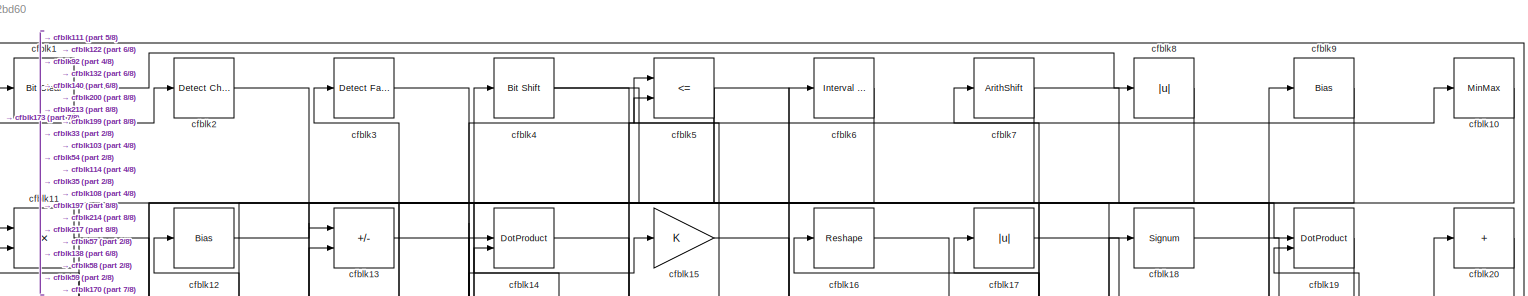
[diagram: root canvas - part 1/8, full width, top band]
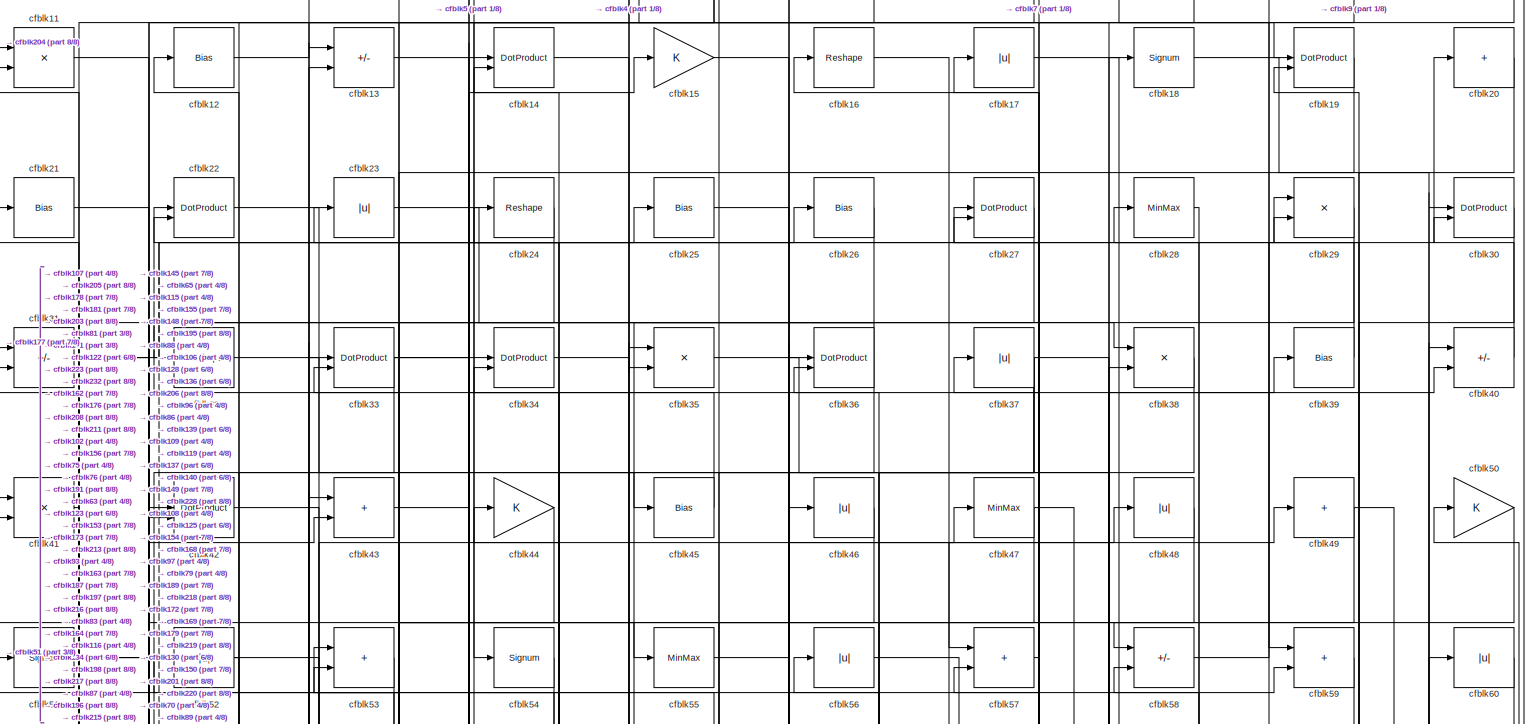
[diagram: root canvas - part 2/8, full width, top band]
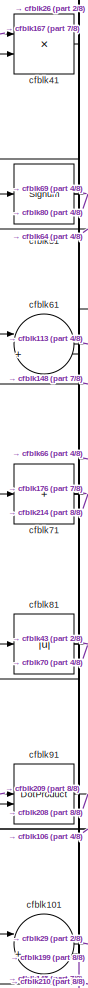
[diagram: root canvas - part 3/8, top left region]
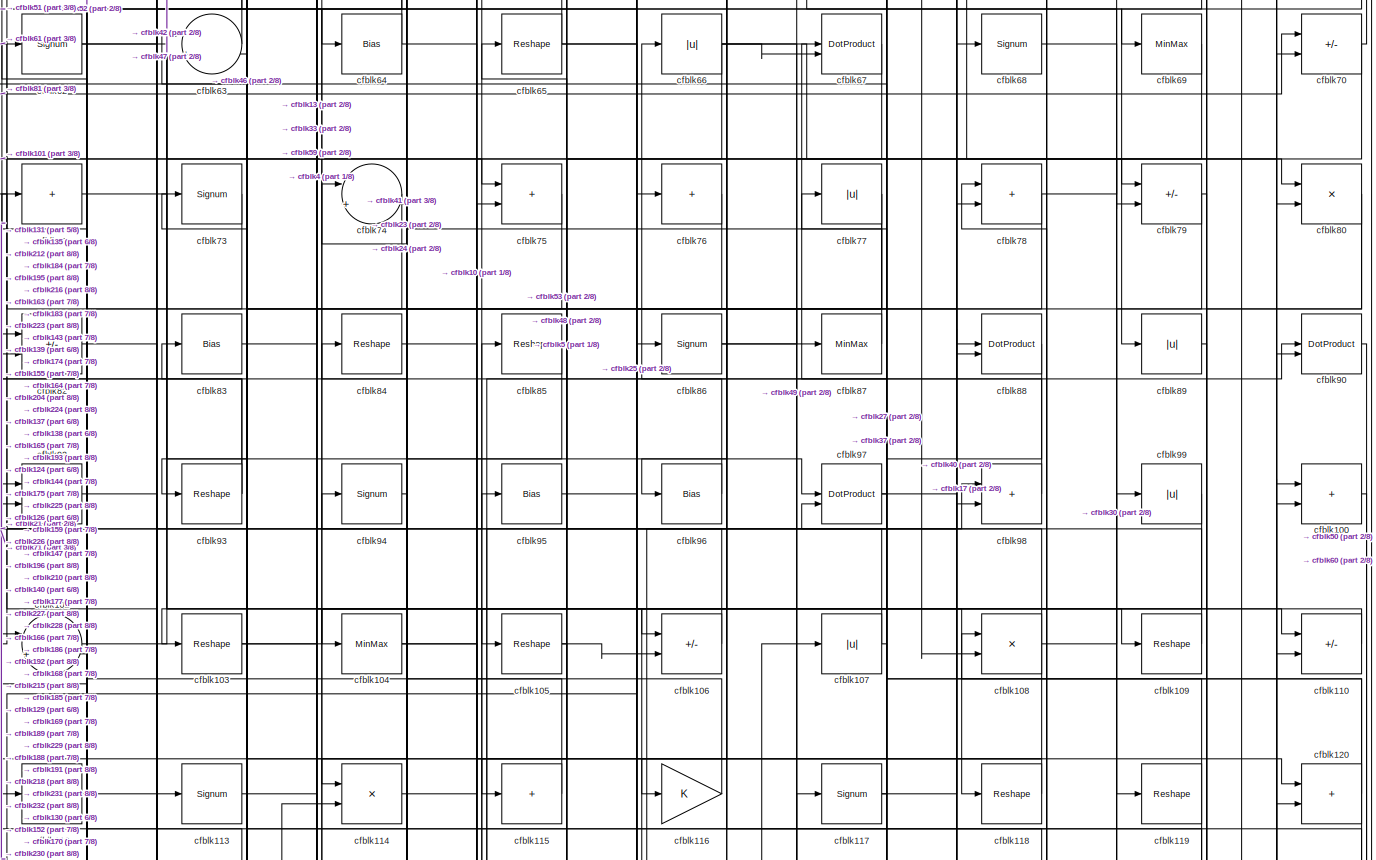
[diagram: root canvas - part 4/8, full width, middle band]
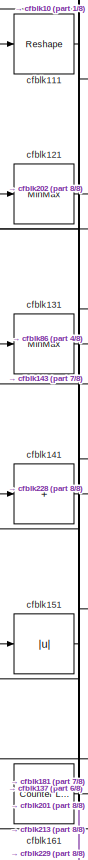
[diagram: root canvas - part 5/8, middle left region]
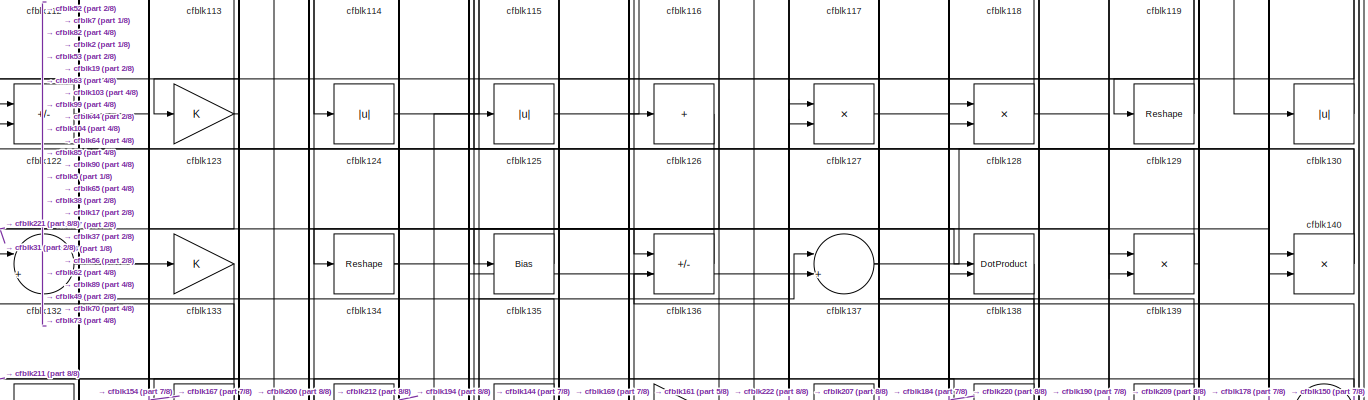
[diagram: root canvas - part 6/8, full width, middle band]
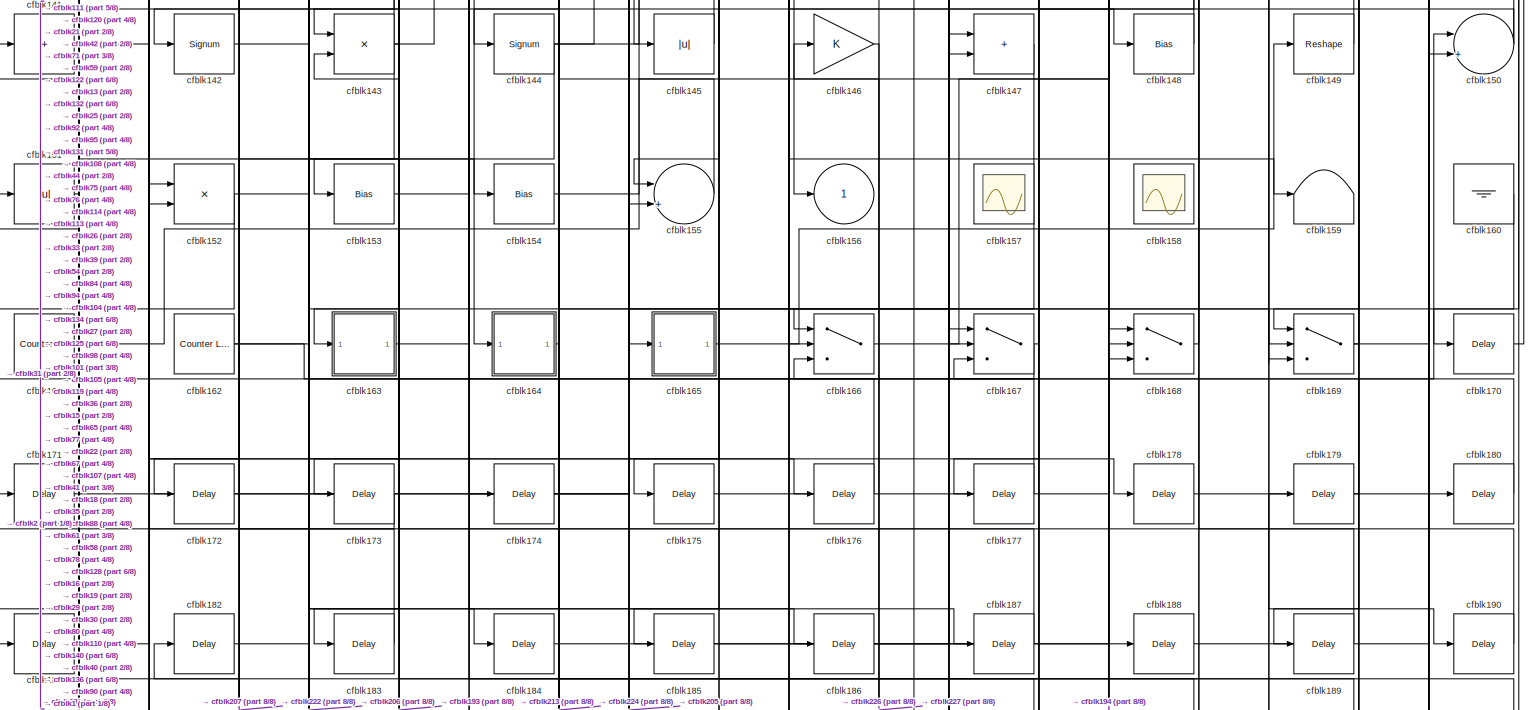
[diagram: root canvas - part 7/8, full width, bottom band]
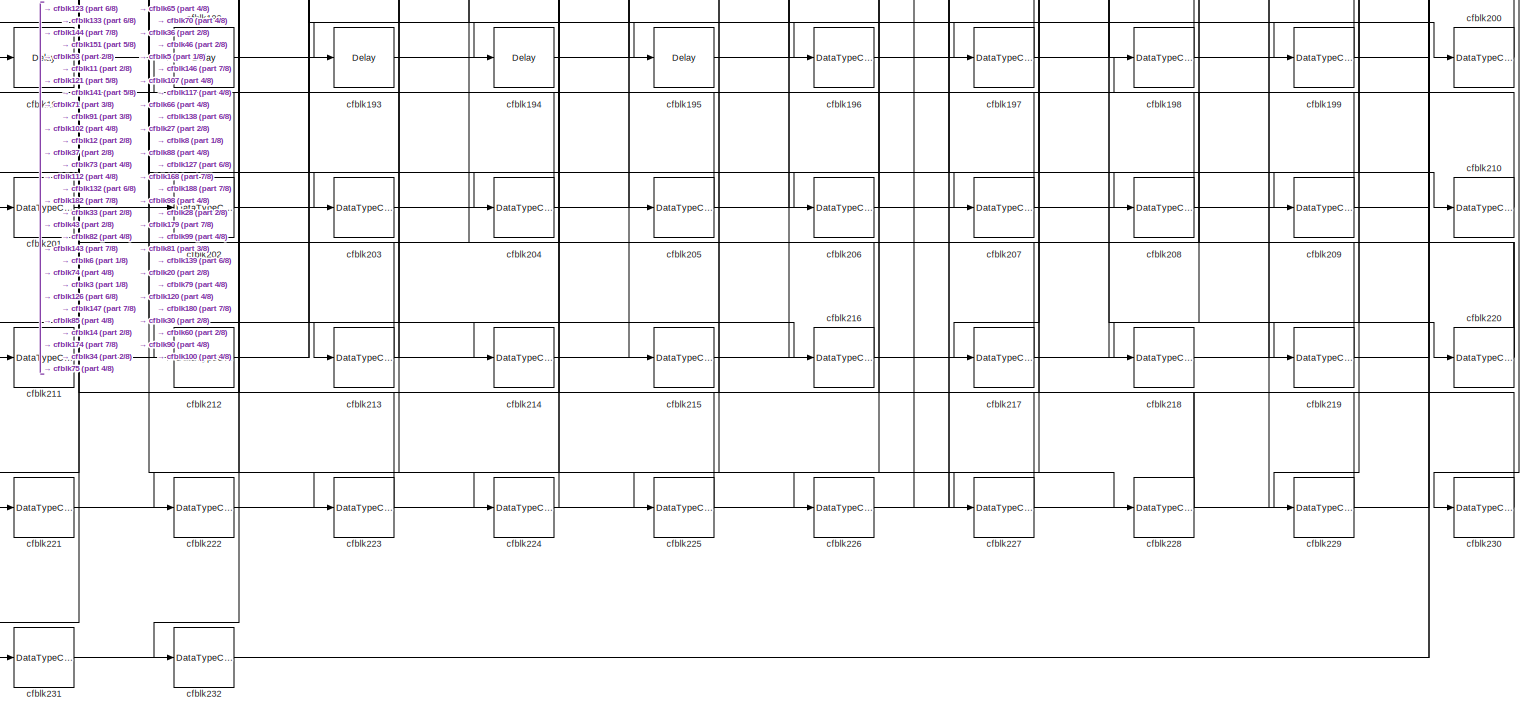
[diagram: root canvas - part 8/8, full width, bottom band]
MODEL slx_42f498f2bd60
KIND model
CONFIG AbsTol = auto
CONFIG EnableMultiTasking = off
CONFIG FixedStep = auto
CONFIG MaxStep = auto
CONFIG MinStep = auto
CONFIG RelTol = 1e-3
CONFIG SampleTimeConstraint = Unconstrained
CONFIG SolverName = VariableStepAuto
CONFIG StartTime = 0.0
CONFIG StopTime = 10.0
BLOCK [Reference] cfblk1  REF=simulink/Logic and Bit
Operations/Bit Clear
  LibrarySourceBlock = hdlsllib/Logic and Bit\nOperations/Bit Clear
  SourceBlock = simulink/Logic and Bit\nOperations/Bit Clear
  SourceType = Bit Clear
BLOCK [MinMax] cfblk10
BLOCK [Sum] cfblk100
  IconShape = rectangular
BLOCK [Sum] cfblk101
  Inputs = |++
BLOCK [Sum] cfblk102
  Inputs = |++
BLOCK [Reshape] cfblk103
BLOCK [MinMax] cfblk104
BLOCK [Reshape] cfblk105
BLOCK [Sum] cfblk106
  IconShape = rectangular
  Inputs = +-
BLOCK [Abs] cfblk107
  SaturateOnIntegerOverflow = off
BLOCK [Product] cfblk108
  Inputs = */
  RndMeth = Zero
  SaturateOnIntegerOverflow = on
BLOCK [Reshape] cfblk109
BLOCK [Product] cfblk11
  Inputs = */
  RndMeth = Zero
  SaturateOnIntegerOverflow = on
BLOCK [Sum] cfblk110
  IconShape = rectangular
  Inputs = +-
BLOCK [Reshape] cfblk111
BLOCK [MinMax] cfblk112
BLOCK [Signum] cfblk113
BLOCK [Product] cfblk114
  Inputs = */
  RndMeth = Zero
  SaturateOnIntegerOverflow = on
BLOCK [Sum] cfblk115
  IconShape = rectangular
  Inputs = +
BLOCK [Gain] cfblk116
BLOCK [Signum] cfblk117
BLOCK [Reshape] cfblk118
BLOCK [Reshape] cfblk119
BLOCK [Bias] cfblk12
  Bias = 0.0
  SaturateOnIntegerOverflow = off
BLOCK [Sum] cfblk120
  IconShape = rectangular
BLOCK [MinMax] cfblk121
BLOCK [Sum] cfblk122
  IconShape = rectangular
  Inputs = +-
BLOCK [Gain] cfblk123
BLOCK [Abs] cfblk124
  SaturateOnIntegerOverflow = off
BLOCK [Abs] cfblk125
  SaturateOnIntegerOverflow = off
BLOCK [Sum] cfblk126
  IconShape = rectangular
  Inputs = +
BLOCK [Product] cfblk127
  Inputs = */
  RndMeth = Zero
  SaturateOnIntegerOverflow = on
BLOCK [Product] cfblk128
  Inputs = */
  RndMeth = Zero
  SaturateOnIntegerOverflow = on
BLOCK [Reshape] cfblk129
BLOCK [Sum] cfblk13
  IconShape = rectangular
  Inputs = +-
BLOCK [Abs] cfblk130
  SaturateOnIntegerOverflow = off
BLOCK [MinMax] cfblk131
BLOCK [Sum] cfblk132
  Inputs = |++
BLOCK [Gain] cfblk133
BLOCK [Reshape] cfblk134
BLOCK [Bias] cfblk135
  Bias = 0.0
  SaturateOnIntegerOverflow = off
BLOCK [Sum] cfblk136
  IconShape = rectangular
  Inputs = +-
BLOCK [Sum] cfblk137
  Inputs = |++
BLOCK [DotProduct] cfblk138
  OutDataTypeStr = Inherit: Inherit via internal rule
BLOCK [Product] cfblk139
  Inputs = */
  RndMeth = Zero
  SaturateOnIntegerOverflow = on
BLOCK [DotProduct] cfblk14
  OutDataTypeStr = Inherit: Inherit via internal rule
BLOCK [Product] cfblk140
  Inputs = */
  RndMeth = Zero
  SaturateOnIntegerOverflow = on
BLOCK [Sum] cfblk141
  IconShape = rectangular
  Inputs = +
BLOCK [Signum] cfblk142
BLOCK [Product] cfblk143
  Inputs = */
  RndMeth = Zero
  SaturateOnIntegerOverflow = on
BLOCK [Signum] cfblk144
BLOCK [Abs] cfblk145
  SaturateOnIntegerOverflow = off
BLOCK [Gain] cfblk146
BLOCK [Sum] cfblk147
  IconShape = rectangular
BLOCK [Bias] cfblk148
  Bias = 0.0
  SaturateOnIntegerOverflow = off
BLOCK [Reshape] cfblk149
BLOCK [Gain] cfblk15
BLOCK [Sum] cfblk150
  Inputs = |++
BLOCK [Abs] cfblk151
  SaturateOnIntegerOverflow = off
BLOCK [Product] cfblk152
  Inputs = */
  RndMeth = Zero
  SaturateOnIntegerOverflow = on
BLOCK [Bias] cfblk153
  Bias = 0.0
  SaturateOnIntegerOverflow = off
BLOCK [Bias] cfblk154
  Bias = 0.0
  SaturateOnIntegerOverflow = off
BLOCK [Sum] cfblk155
  Inputs = |++
BLOCK [Outport] cfblk156
  VectorParamsAs1DForOutWhenUnconnected = off
BLOCK [Scope] cfblk157
  Floating = on
  NumInputPorts = 1
  ScopeSpecificationString = Simulink.scopes.TimeScopeBlockCfg('CurrentConfiguration', extmgr.ConfigurationSet(extmgr.Configuration('Core','General UI',true,'FigureColor',[0.156862745098039 0.156862745098039 0.156862745098039]),extmgr.Configuration('Core','Source UI',true),extmgr.Configuration('Sources','WiredSimulink',true,'DataLoggingVariableName','ScopeData1','DataLoggingSaveFormat','StructureWithTime','DataLoggingLimitDat...<+2713ch>
BLOCK [Scope] cfblk158
  Floating = on
  NumInputPorts = 1
  ScopeSpecificationString = Simulink.scopes.TimeScopeBlockCfg('CurrentConfiguration', extmgr.ConfigurationSet(extmgr.Configuration('Core','General UI',true,'FigureColor',[0.156862745098039 0.156862745098039 0.156862745098039]),extmgr.Configuration('Core','Source UI',true),extmgr.Configuration('Sources','WiredSimulink',true,'DataLoggingVariableName','ScopeData1','DataLoggingSaveFormat','StructureWithTime','DataLoggingLimitDat...<+2713ch>
BLOCK [Terminator] cfblk159
BLOCK [Reshape] cfblk16
BLOCK [Ground] cfblk160
BLOCK [Reference] cfblk161  REF=hdlsllib/Sources/Counter
Limited
  SourceBlock = hdlsllib/Sources/Counter\nLimited
  SourceType = Counter Limited
BLOCK [Reference] cfblk162  REF=hdlsllib/Sources/Counter
Limited
  SourceBlock = hdlsllib/Sources/Counter\nLimited
  SourceType = Counter Limited
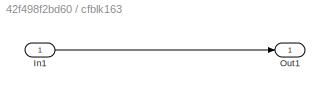
BLOCK [SubSystem] cfblk163
  LibrarySourceBlock = hdlsllib/Ports &\nSubsystems/Subsystem
BLOCK [Inport] cfblk163/In1
BLOCK [Outport] cfblk163/Out1
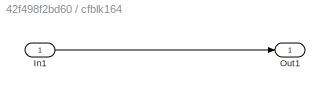
BLOCK [SubSystem] cfblk164
  LibrarySourceBlock = hdlsllib/Ports &\nSubsystems/Subsystem
BLOCK [Inport] cfblk164/In1
BLOCK [Outport] cfblk164/Out1
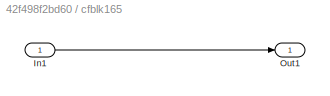
BLOCK [SubSystem] cfblk165
  LibrarySourceBlock = hdlsllib/Ports &\nSubsystems/Subsystem
BLOCK [Inport] cfblk165/In1
BLOCK [Outport] cfblk165/Out1
BLOCK [Switch] cfblk166
  InputSameDT = off
  SaturateOnIntegerOverflow = off
BLOCK [Switch] cfblk167
  InputSameDT = off
  SaturateOnIntegerOverflow = off
BLOCK [Switch] cfblk168
  InputSameDT = off
  SaturateOnIntegerOverflow = off
BLOCK [Switch] cfblk169
  InputSameDT = off
  SaturateOnIntegerOverflow = off
BLOCK [Abs] cfblk17
  SaturateOnIntegerOverflow = off
BLOCK [Delay] cfblk170
  InputPortMap = u0
  SampleTime = 1
BLOCK [Delay] cfblk171
  InputPortMap = u0
  SampleTime = 1
BLOCK [Delay] cfblk172
  InputPortMap = u0
  SampleTime = 1
BLOCK [Delay] cfblk173
  InputPortMap = u0
  SampleTime = 1
BLOCK [Delay] cfblk174
  InputPortMap = u0
  SampleTime = 1
BLOCK [Delay] cfblk175
  InputPortMap = u0
  SampleTime = 1
BLOCK [Delay] cfblk176
  InputPortMap = u0
  SampleTime = 1
BLOCK [Delay] cfblk177
  InputPortMap = u0
  SampleTime = 1
BLOCK [Delay] cfblk178
  InputPortMap = u0
  SampleTime = 1
BLOCK [Delay] cfblk179
  InputPortMap = u0
  SampleTime = 1
BLOCK [Signum] cfblk18
BLOCK [Delay] cfblk180
  InputPortMap = u0
  SampleTime = 1
BLOCK [Delay] cfblk181
  InputPortMap = u0
  SampleTime = 1
BLOCK [Delay] cfblk182
  InputPortMap = u0
  SampleTime = 1
BLOCK [Delay] cfblk183
  InputPortMap = u0
  SampleTime = 1
BLOCK [Delay] cfblk184
  InputPortMap = u0
  SampleTime = 1
BLOCK [Delay] cfblk185
  InputPortMap = u0
  SampleTime = 1
BLOCK [Delay] cfblk186
  InputPortMap = u0
  SampleTime = 1
BLOCK [Delay] cfblk187
  InputPortMap = u0
  SampleTime = 1
BLOCK [Delay] cfblk188
  InputPortMap = u0
  SampleTime = 1
BLOCK [Delay] cfblk189
  InputPortMap = u0
  SampleTime = 1
BLOCK [DotProduct] cfblk19
  OutDataTypeStr = Inherit: Inherit via internal rule
BLOCK [Delay] cfblk190
  InputPortMap = u0
  SampleTime = 1
BLOCK [Delay] cfblk191
  InputPortMap = u0
  SampleTime = 1
BLOCK [Delay] cfblk192
  InputPortMap = u0
  SampleTime = 1
BLOCK [Delay] cfblk193
  InputPortMap = u0
  SampleTime = 1
BLOCK [Delay] cfblk194
  InputPortMap = u0
  SampleTime = 1
BLOCK [Delay] cfblk195
  InputPortMap = u0
  SampleTime = 1
BLOCK [DataTypeConversion] cfblk196
  OutDataTypeStr = uint8
  RndMeth = Floor
  SaturateOnIntegerOverflow = off
BLOCK [DataTypeConversion] cfblk197
  OutDataTypeStr = uint8
  RndMeth = Floor
  SaturateOnIntegerOverflow = off
BLOCK [DataTypeConversion] cfblk198
  OutDataTypeStr = uint8
  RndMeth = Floor
  SaturateOnIntegerOverflow = off
BLOCK [DataTypeConversion] cfblk199
  OutDataTypeStr = uint8
  RndMeth = Floor
  SaturateOnIntegerOverflow = off
BLOCK [Reference] cfblk2  REF=simulink/Logic and Bit
Operations/Detect
Change
  LibrarySourceBlock = hdlsllib/Logic and Bit\nOperations/Detect\nChange
  SourceBlock = simulink/Logic and Bit\nOperations/Detect\nChange
  SourceType = Detect Change
BLOCK [Sum] cfblk20
  IconShape = rectangular
  Inputs = +
BLOCK [DataTypeConversion] cfblk200
  OutDataTypeStr = uint8
  RndMeth = Floor
  SaturateOnIntegerOverflow = off
BLOCK [DataTypeConversion] cfblk201
  OutDataTypeStr = uint8
  RndMeth = Floor
  SaturateOnIntegerOverflow = off
BLOCK [DataTypeConversion] cfblk202
  OutDataTypeStr = uint8
  RndMeth = Floor
  SaturateOnIntegerOverflow = off
BLOCK [DataTypeConversion] cfblk203
  OutDataTypeStr = uint8
  RndMeth = Floor
  SaturateOnIntegerOverflow = off
BLOCK [DataTypeConversion] cfblk204
  OutDataTypeStr = uint8
  RndMeth = Floor
  SaturateOnIntegerOverflow = off
BLOCK [DataTypeConversion] cfblk205
  OutDataTypeStr = uint8
  RndMeth = Floor
  SaturateOnIntegerOverflow = off
BLOCK [DataTypeConversion] cfblk206
  OutDataTypeStr = uint8
  RndMeth = Floor
  SaturateOnIntegerOverflow = off
BLOCK [DataTypeConversion] cfblk207
  OutDataTypeStr = uint8
  RndMeth = Floor
  SaturateOnIntegerOverflow = off
BLOCK [DataTypeConversion] cfblk208
  OutDataTypeStr = uint8
  RndMeth = Floor
  SaturateOnIntegerOverflow = off
BLOCK [DataTypeConversion] cfblk209
  OutDataTypeStr = uint8
  RndMeth = Floor
  SaturateOnIntegerOverflow = off
BLOCK [Bias] cfblk21
  Bias = 0.0
  SaturateOnIntegerOverflow = off
BLOCK [DataTypeConversion] cfblk210
  OutDataTypeStr = uint8
  RndMeth = Floor
  SaturateOnIntegerOverflow = off
BLOCK [DataTypeConversion] cfblk211
  OutDataTypeStr = uint8
  RndMeth = Floor
  SaturateOnIntegerOverflow = off
BLOCK [DataTypeConversion] cfblk212
  OutDataTypeStr = uint8
  RndMeth = Floor
  SaturateOnIntegerOverflow = off
BLOCK [DataTypeConversion] cfblk213
  RndMeth = Floor
  SaturateOnIntegerOverflow = off
BLOCK [DataTypeConversion] cfblk214
  OutDataTypeStr = uint8
  RndMeth = Floor
  SaturateOnIntegerOverflow = off
BLOCK [DataTypeConversion] cfblk215
  OutDataTypeStr = uint8
  RndMeth = Floor
  SaturateOnIntegerOverflow = off
BLOCK [DataTypeConversion] cfblk216
  OutDataTypeStr = uint8
  RndMeth = Floor
  SaturateOnIntegerOverflow = off
BLOCK [DataTypeConversion] cfblk217
  OutDataTypeStr = uint8
  RndMeth = Floor
  SaturateOnIntegerOverflow = off
BLOCK [DataTypeConversion] cfblk218
  OutDataTypeStr = uint8
  RndMeth = Floor
  SaturateOnIntegerOverflow = off
BLOCK [DataTypeConversion] cfblk219
  OutDataTypeStr = uint8
  RndMeth = Floor
  SaturateOnIntegerOverflow = off
BLOCK [DotProduct] cfblk22
  OutDataTypeStr = Inherit: Inherit via internal rule
BLOCK [DataTypeConversion] cfblk220
  RndMeth = Floor
  SaturateOnIntegerOverflow = off
BLOCK [DataTypeConversion] cfblk221
  OutDataTypeStr = uint8
  RndMeth = Floor
  SaturateOnIntegerOverflow = off
BLOCK [DataTypeConversion] cfblk222
  OutDataTypeStr = uint8
  RndMeth = Floor
  SaturateOnIntegerOverflow = off
BLOCK [DataTypeConversion] cfblk223
  OutDataTypeStr = uint8
  RndMeth = Floor
  SaturateOnIntegerOverflow = off
BLOCK [DataTypeConversion] cfblk224
  OutDataTypeStr = uint8
  RndMeth = Floor
  SaturateOnIntegerOverflow = off
BLOCK [DataTypeConversion] cfblk225
  OutDataTypeStr = uint8
  RndMeth = Floor
  SaturateOnIntegerOverflow = off
BLOCK [DataTypeConversion] cfblk226
  RndMeth = Floor
  SaturateOnIntegerOverflow = off
BLOCK [DataTypeConversion] cfblk227
  OutDataTypeStr = uint8
  RndMeth = Floor
  SaturateOnIntegerOverflow = off
BLOCK [DataTypeConversion] cfblk228
  RndMeth = Floor
  SaturateOnIntegerOverflow = off
BLOCK [DataTypeConversion] cfblk229
  OutDataTypeStr = uint8
  RndMeth = Floor
  SaturateOnIntegerOverflow = off
BLOCK [Abs] cfblk23
  SaturateOnIntegerOverflow = off
BLOCK [DataTypeConversion] cfblk230
  OutDataTypeStr = uint8
  RndMeth = Floor
  SaturateOnIntegerOverflow = off
BLOCK [DataTypeConversion] cfblk231
  OutDataTypeStr = uint8
  RndMeth = Floor
  SaturateOnIntegerOverflow = off
BLOCK [DataTypeConversion] cfblk232
  OutDataTypeStr = uint8
  RndMeth = Floor
  SaturateOnIntegerOverflow = off
BLOCK [Reshape] cfblk24
BLOCK [Bias] cfblk25
  Bias = 0.0
  SaturateOnIntegerOverflow = off
BLOCK [Bias] cfblk26
  Bias = 0.0
  SaturateOnIntegerOverflow = off
BLOCK [DotProduct] cfblk27
  OutDataTypeStr = Inherit: Inherit via internal rule
BLOCK [MinMax] cfblk28
BLOCK [Product] cfblk29
  Inputs = */
  RndMeth = Zero
  SaturateOnIntegerOverflow = on
BLOCK [Reference] cfblk3  REF=hdlsllib/Logic and Bit
Operations/Detect Fall
Negative
  SourceBlock = hdlsllib/Logic and Bit\nOperations/Detect Fall\nNegative
  SourceType = Detect Fall Negative
BLOCK [DotProduct] cfblk30
  OutDataTypeStr = Inherit: Inherit via internal rule
BLOCK [Sum] cfblk31
  IconShape = rectangular
  Inputs = +-
BLOCK [Reshape] cfblk32
BLOCK [DotProduct] cfblk33
  OutDataTypeStr = Inherit: Inherit via internal rule
BLOCK [DotProduct] cfblk34
  OutDataTypeStr = Inherit: Inherit via internal rule
BLOCK [Product] cfblk35
  Inputs = */
  RndMeth = Zero
  SaturateOnIntegerOverflow = on
BLOCK [DotProduct] cfblk36
  OutDataTypeStr = Inherit: Inherit via internal rule
BLOCK [Abs] cfblk37
  SaturateOnIntegerOverflow = off
BLOCK [Product] cfblk38
  Inputs = */
  RndMeth = Zero
  SaturateOnIntegerOverflow = on
BLOCK [Bias] cfblk39
  Bias = 0.0
  SaturateOnIntegerOverflow = off
BLOCK [Reference] cfblk4  REF=hdlsllib/Logic and Bit
Operations/Bit Shift
  SourceBlock = hdlsllib/Logic and Bit\nOperations/Bit Shift
  SourceType = Bit Shift
BLOCK [Sum] cfblk40
  IconShape = rectangular
  Inputs = +-
BLOCK [Product] cfblk41
  Inputs = */
  RndMeth = Zero
  SaturateOnIntegerOverflow = on
BLOCK [DotProduct] cfblk42
  OutDataTypeStr = Inherit: Inherit via internal rule
BLOCK [Sum] cfblk43
  IconShape = rectangular
BLOCK [Gain] cfblk44
BLOCK [Bias] cfblk45
  Bias = 0.0
  SaturateOnIntegerOverflow = off
BLOCK [Abs] cfblk46
  SaturateOnIntegerOverflow = off
BLOCK [MinMax] cfblk47
BLOCK [Abs] cfblk48
  SaturateOnIntegerOverflow = off
BLOCK [Sum] cfblk49
  IconShape = rectangular
  Inputs = +
BLOCK [RelationalOperator] cfblk5
  InputSameDT = off
  Operator = <=
  OutDataTypeStr = boolean
BLOCK [Gain] cfblk50
BLOCK [Signum] cfblk51
BLOCK [Abs] cfblk52
  SaturateOnIntegerOverflow = off
BLOCK [Sum] cfblk53
  IconShape = rectangular
BLOCK [Signum] cfblk54
BLOCK [MinMax] cfblk55
BLOCK [Abs] cfblk56
  SaturateOnIntegerOverflow = off
BLOCK [Sum] cfblk57
  IconShape = rectangular
BLOCK [Sum] cfblk58
  IconShape = rectangular
  Inputs = +-
BLOCK [Sum] cfblk59
  IconShape = rectangular
BLOCK [Reference] cfblk6  REF=hdlsllib/Logic and Bit
Operations/Interval Test
  SourceBlock = hdlsllib/Logic and Bit\nOperations/Interval Test
  SourceType = Interval Test
BLOCK [Abs] cfblk60
  SaturateOnIntegerOverflow = off
BLOCK [Sum] cfblk61
  Inputs = |++
BLOCK [Signum] cfblk62
BLOCK [Sum] cfblk63
  Inputs = |++
BLOCK [Bias] cfblk64
  Bias = 0.0
  SaturateOnIntegerOverflow = off
BLOCK [Reshape] cfblk65
BLOCK [Abs] cfblk66
  SaturateOnIntegerOverflow = off
BLOCK [DotProduct] cfblk67
  OutDataTypeStr = Inherit: Inherit via internal rule
BLOCK [Signum] cfblk68
BLOCK [MinMax] cfblk69
BLOCK [ArithShift] cfblk7
  BitShiftNumber = 8
  InputPortMap = u0
BLOCK [Sum] cfblk70
  IconShape = rectangular
  Inputs = +-
BLOCK [Sum] cfblk71
  IconShape = rectangular
  Inputs = +
BLOCK [Sum] cfblk72
  IconShape = rectangular
  Inputs = +
BLOCK [Signum] cfblk73
BLOCK [Sum] cfblk74
  Inputs = |++
BLOCK [Sum] cfblk75
  IconShape = rectangular
BLOCK [Sum] cfblk76
  IconShape = rectangular
  Inputs = +
BLOCK [Abs] cfblk77
  SaturateOnIntegerOverflow = off
BLOCK [Sum] cfblk78
  IconShape = rectangular
BLOCK [Sum] cfblk79
  IconShape = rectangular
  Inputs = +-
BLOCK [Abs] cfblk8
  SaturateOnIntegerOverflow = off
BLOCK [Product] cfblk80
  Inputs = */
  RndMeth = Zero
  SaturateOnIntegerOverflow = on
BLOCK [Abs] cfblk81
  SaturateOnIntegerOverflow = off
BLOCK [Sum] cfblk82
  IconShape = rectangular
  Inputs = +-
BLOCK [Bias] cfblk83
  Bias = 0.0
  SaturateOnIntegerOverflow = off
BLOCK [Reshape] cfblk84
BLOCK [Reshape] cfblk85
BLOCK [Signum] cfblk86
BLOCK [MinMax] cfblk87
BLOCK [DotProduct] cfblk88
  OutDataTypeStr = Inherit: Inherit via internal rule
BLOCK [Abs] cfblk89
  SaturateOnIntegerOverflow = off
BLOCK [Bias] cfblk9
  Bias = 0.0
  SaturateOnIntegerOverflow = off
BLOCK [DotProduct] cfblk90
  OutDataTypeStr = Inherit: Inherit via internal rule
BLOCK [DotProduct] cfblk91
  OutDataTypeStr = Inherit: Inherit via internal rule
BLOCK [Product] cfblk92
  Inputs = */
  RndMeth = Zero
  SaturateOnIntegerOverflow = on
BLOCK [Reshape] cfblk93
BLOCK [Signum] cfblk94
BLOCK [Bias] cfblk95
  Bias = 0.0
  SaturateOnIntegerOverflow = off
BLOCK [Bias] cfblk96
  Bias = 0.0
  SaturateOnIntegerOverflow = off
BLOCK [DotProduct] cfblk97
  OutDataTypeStr = Inherit: Inherit via internal rule
BLOCK [Sum] cfblk98
  IconShape = rectangular
BLOCK [Abs] cfblk99
  SaturateOnIntegerOverflow = off
LINE cfblk100:1 -> cfblk230:1
LINE cfblk101:1 -> cfblk29:1
LINE cfblk102:1 -> cfblk47:1
NET cfblk103:1 -> cfblk139:2, cfblk4:1
NET cfblk104:1 -> cfblk137:2, cfblk165:1
NET cfblk105:1 -> cfblk106:2, cfblk175:1
LINE cfblk106:1 -> cfblk71:1
NET cfblk107:1 -> cfblk177:1, cfblk21:1
NET cfblk108:1 -> cfblk183:1, cfblk30:2, cfblk5:1
LINE cfblk109:1 -> cfblk37:1
LINE cfblk10:1 -> cfblk111:1
LINE cfblk110:1 -> cfblk103:1
LINE cfblk111:1 -> cfblk181:1
LINE cfblk112:1 -> cfblk195:1
LINE cfblk113:1 -> cfblk174:1
LINE cfblk114:1 -> cfblk10:1
LINE cfblk115:1 -> cfblk92:1
LINE cfblk116:1 -> cfblk24:1
NET cfblk117:1 -> cfblk68:1, cfblk97:2
LINE cfblk118:1 -> cfblk112:1
NET cfblk119:1 -> cfblk185:1, cfblk27:1
LINE cfblk11:1 -> cfblk203:1
NET cfblk120:1 -> cfblk108:1, cfblk152:2, cfblk87:1
LINE cfblk121:1 -> cfblk202:1
LINE cfblk122:1 -> cfblk154:1
NET cfblk123:1 -> cfblk221:1, cfblk31:2, cfblk53:1
LINE cfblk124:1 -> cfblk90:1
LINE cfblk125:1 -> cfblk38:2
LINE cfblk126:1 -> cfblk194:1
LINE cfblk127:1 -> cfblk220:1
NET cfblk128:1 -> cfblk190:1, cfblk56:1
LINE cfblk129:1 -> cfblk62:1
LINE cfblk12:1 -> cfblk19:1
LINE cfblk130:1 -> cfblk73:1
LINE cfblk131:1 -> cfblk86:1
NET cfblk132:1 -> cfblk167:2, cfblk200:1
LINE cfblk133:1 -> cfblk211:1
NET cfblk134:1 -> cfblk169:2, cfblk44:1
LINE cfblk135:1 -> cfblk82:2
LINE cfblk136:1 -> cfblk135:1
NET cfblk137:1 -> cfblk17:1, cfblk70:2
LINE cfblk138:1 -> cfblk207:1
NET cfblk139:1 -> cfblk209:1, cfblk63:1
LINE cfblk13:1 -> cfblk109:1
NET cfblk140:1 -> cfblk57:2, cfblk85:1
LINE cfblk141:1 -> cfblk228:1
LINE cfblk142:1 -> cfblk186:1
NET cfblk143:1 -> cfblk114:2, cfblk131:1, cfblk193:1, cfblk222:1
NET cfblk144:1 -> cfblk125:1, cfblk231:1, cfblk98:1
LINE cfblk145:1 -> cfblk101:1
LINE cfblk146:1 -> cfblk226:1
LINE cfblk147:1 -> cfblk224:1
LINE cfblk148:1 -> cfblk61:1
LINE cfblk149:1 -> cfblk16:1
LINE cfblk14:1 -> cfblk215:1
NET cfblk150:1 -> cfblk136:2, cfblk142:1
LINE cfblk151:1 -> cfblk201:1
NET cfblk152:1 -> cfblk171:1, cfblk95:1
LINE cfblk153:1 -> cfblk39:1
LINE cfblk154:1 -> cfblk18:1
LINE cfblk155:1 -> cfblk84:1
LINE cfblk15:1 -> cfblk148:1
LINE cfblk160:1 -> cfblk166:1
LINE cfblk161:1 -> cfblk137:1
NET cfblk162:1 -> cfblk150:1, cfblk25:1
LINE cfblk163/In1:1 -> cfblk163/Out1:1
LINE cfblk163:1 -> cfblk26:1
LINE cfblk164/In1:1 -> cfblk164/Out1:1
LINE cfblk164:1 -> cfblk94:1
LINE cfblk165/In1:1 -> cfblk165/Out1:1
LINE cfblk165:1 -> cfblk149:1
LINE cfblk166:1 -> cfblk88:1
NET cfblk167:1 -> cfblk166:3, cfblk41:1
LINE cfblk168:1 -> cfblk78:1
NET cfblk169:1 -> cfblk29:2, cfblk40:1
LINE cfblk16:1 -> cfblk57:1
LINE cfblk170:1 -> cfblk1:1
LINE cfblk171:1 -> cfblk155:2
LINE cfblk172:1 -> cfblk35:1
LINE cfblk173:1 -> cfblk2:1
LINE cfblk174:1 -> cfblk205:1
LINE cfblk175:1 -> cfblk168:2
LINE cfblk176:1 -> cfblk13:1
LINE cfblk177:1 -> cfblk31:1
LINE cfblk178:1 -> cfblk140:1
LINE cfblk179:1 -> cfblk19:2
LINE cfblk17:1 -> cfblk79:1
LINE cfblk180:1 -> cfblk167:3
LINE cfblk181:1 -> cfblk42:1
LINE cfblk182:1 -> cfblk206:1
LINE cfblk183:1 -> cfblk152:1
LINE cfblk184:1 -> cfblk128:1
LINE cfblk185:1 -> cfblk147:1
LINE cfblk186:1 -> cfblk78:2
LINE cfblk187:1 -> cfblk143:2
LINE cfblk188:1 -> cfblk110:2
LINE cfblk189:1 -> cfblk58:2
LINE cfblk18:1 -> cfblk150:2
LINE cfblk190:1 -> cfblk132:2
LINE cfblk191:1 -> cfblk120:2
LINE cfblk192:1 -> cfblk98:2
LINE cfblk193:1 -> cfblk75:2
LINE cfblk194:1 -> cfblk168:3
LINE cfblk195:1 -> cfblk46:1
LINE cfblk196:1 -> cfblk117:1
LINE cfblk197:1 -> cfblk34:1
LINE cfblk198:1 -> cfblk34:2
LINE cfblk199:1 -> cfblk81:1
LINE cfblk19:1 -> cfblk123:1
LINE cfblk1:1 -> cfblk8:1
LINE cfblk200:1 -> cfblk3:1
LINE cfblk201:1 -> cfblk60:1
LINE cfblk202:1 -> cfblk151:1
LINE cfblk203:1 -> cfblk36:1
LINE cfblk204:1 -> cfblk11:1
LINE cfblk205:1 -> cfblk11:2
LINE cfblk206:1 -> cfblk36:2
LINE cfblk207:1 -> cfblk182:1
LINE cfblk208:1 -> cfblk43:1
LINE cfblk209:1 -> cfblk91:1
LINE cfblk20:1 -> cfblk219:1
LINE cfblk210:1 -> cfblk91:2
LINE cfblk211:1 -> cfblk33:1
LINE cfblk212:1 -> cfblk133:1
NET cfblk213:1 -> cfblk121:1, cfblk188:1, cfblk33:2
LINE cfblk214:1 -> cfblk6:1
LINE cfblk215:1 -> cfblk99:1
LINE cfblk216:1 -> cfblk14:1
LINE cfblk217:1 -> cfblk14:2
LINE cfblk218:1 -> cfblk90:2
LINE cfblk219:1 -> cfblk28:1
LINE cfblk21:1 -> cfblk178:1
NET cfblk220:1 -> cfblk192:1, cfblk198:1, cfblk30:1
LINE cfblk221:1 -> cfblk127:1
LINE cfblk222:1 -> cfblk127:2
LINE cfblk223:1 -> cfblk12:1
LINE cfblk224:1 -> cfblk74:1
LINE cfblk225:1 -> cfblk74:2
NET cfblk226:1 -> cfblk107:1, cfblk179:1, cfblk180:1
LINE cfblk227:1 -> cfblk146:1
NET cfblk228:1 -> cfblk27:2, cfblk65:1
LINE cfblk229:1 -> cfblk141:1
LINE cfblk22:1 -> cfblk156:1
LINE cfblk230:1 -> cfblk102:2
LINE cfblk231:1 -> cfblk100:1
LINE cfblk232:1 -> cfblk100:2
LINE cfblk23:1 -> cfblk38:1
LINE cfblk24:1 -> cfblk42:2
LINE cfblk25:1 -> cfblk88:2
LINE cfblk26:1 -> cfblk51:1
LINE cfblk27:1 -> cfblk145:1
LINE cfblk28:1 -> cfblk218:1
LINE cfblk29:1 -> cfblk173:1
LINE cfblk2:1 -> cfblk140:2
LINE cfblk30:1 -> cfblk169:1
NET cfblk31:1 -> cfblk13:2, cfblk55:1
LINE cfblk32:1 -> cfblk45:1
NET cfblk33:1 -> cfblk102:1, cfblk187:1, cfblk5:2
LINE cfblk34:1 -> cfblk196:1
LINE cfblk35:1 -> cfblk168:1
NET cfblk36:1 -> cfblk155:1, cfblk32:1
NET cfblk37:1 -> cfblk106:1, cfblk128:2, cfblk134:1, cfblk232:1
LINE cfblk38:1 -> cfblk136:1
LINE cfblk39:1 -> cfblk22:2
LINE cfblk3:1 -> cfblk199:1
LINE cfblk40:1 -> cfblk20:1
LINE cfblk41:1 -> cfblk61:2
LINE cfblk42:1 -> cfblk75:1
LINE cfblk43:1 -> cfblk15:1
LINE cfblk44:1 -> cfblk153:1
LINE cfblk45:1 -> cfblk22:1
LINE cfblk46:1 -> cfblk93:1
NET cfblk47:1 -> cfblk108:2, cfblk96:1
LINE cfblk48:1 -> cfblk115:1
NET cfblk49:1 -> cfblk130:1, cfblk63:2
NET cfblk4:1 -> cfblk138:2, cfblk35:2
LINE cfblk50:1 -> cfblk58:1
NET cfblk51:1 -> cfblk69:1, cfblk80:2
NET cfblk52:1 -> cfblk122:1, cfblk76:1
LINE cfblk53:1 -> cfblk191:1
LINE cfblk54:1 -> cfblk164:1
LINE cfblk55:1 -> cfblk48:1
LINE cfblk56:1 -> cfblk139:1
LINE cfblk57:1 -> cfblk7:1
LINE cfblk58:1 -> cfblk9:1
LINE cfblk59:1 -> cfblk172:1
NET cfblk5:1 -> cfblk122:2, cfblk197:1, cfblk92:2
LINE cfblk60:1 -> cfblk89:1
LINE cfblk61:1 -> cfblk113:1
NET cfblk62:1 -> cfblk64:1, cfblk97:1
LINE cfblk63:1 -> cfblk52:1
NET cfblk64:1 -> cfblk138:1, cfblk41:2
NET cfblk65:1 -> cfblk126:1, cfblk159:1, cfblk53:2
NET cfblk66:1 -> cfblk101:2, cfblk210:1, cfblk67:2, cfblk79:2
LINE cfblk67:1 -> cfblk147:2
LINE cfblk68:1 -> cfblk119:1
LINE cfblk69:1 -> cfblk105:1
LINE cfblk6:1 -> cfblk213:1
NET cfblk70:1 -> cfblk225:1, cfblk50:1
NET cfblk71:1 -> cfblk167:1, cfblk176:1, cfblk214:1
LINE cfblk72:1 -> cfblk118:1
LINE cfblk73:1 -> cfblk212:1
LINE cfblk74:1 -> cfblk223:1
LINE cfblk75:1 -> cfblk143:1
LINE cfblk76:1 -> cfblk163:1
NET cfblk77:1 -> cfblk114:1, cfblk166:2
NET cfblk78:1 -> cfblk104:1, cfblk80:1
NET cfblk79:1 -> cfblk116:1, cfblk229:1
NET cfblk7:1 -> cfblk132:1, cfblk59:1
NET cfblk80:1 -> cfblk169:3, cfblk189:1
NET cfblk81:1 -> cfblk43:2, cfblk70:1
LINE cfblk82:1 -> cfblk216:1
LINE cfblk83:1 -> cfblk59:2
LINE cfblk84:1 -> cfblk120:1
LINE cfblk85:1 -> cfblk204:1
NET cfblk86:1 -> cfblk49:1, cfblk67:1
LINE cfblk87:1 -> cfblk23:1
LINE cfblk88:1 -> cfblk227:1
LINE cfblk89:1 -> cfblk129:1
LINE cfblk8:1 -> cfblk217:1
LINE cfblk90:1 -> cfblk170:1
LINE cfblk91:1 -> cfblk208:1
LINE cfblk92:1 -> cfblk184:1
NET cfblk93:1 -> cfblk72:1, cfblk83:1
LINE cfblk94:1 -> cfblk144:1
LINE cfblk95:1 -> cfblk110:1
LINE cfblk96:1 -> cfblk82:1
NET cfblk97:1 -> cfblk40:2, cfblk77:1
LINE cfblk98:1 -> cfblk66:1
LINE cfblk99:1 -> cfblk124:1
LINE cfblk9:1 -> cfblk54:1
note: NET lines group one-source signal fan-out (src -> all destinations, sorted); 1:1 wires keep LINE
